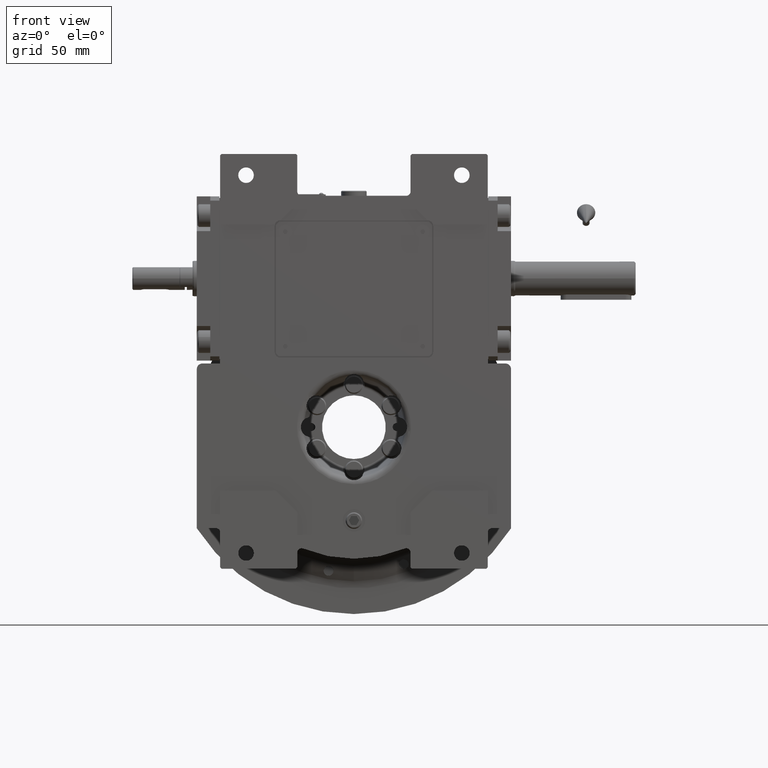
[diagram: clean part render]
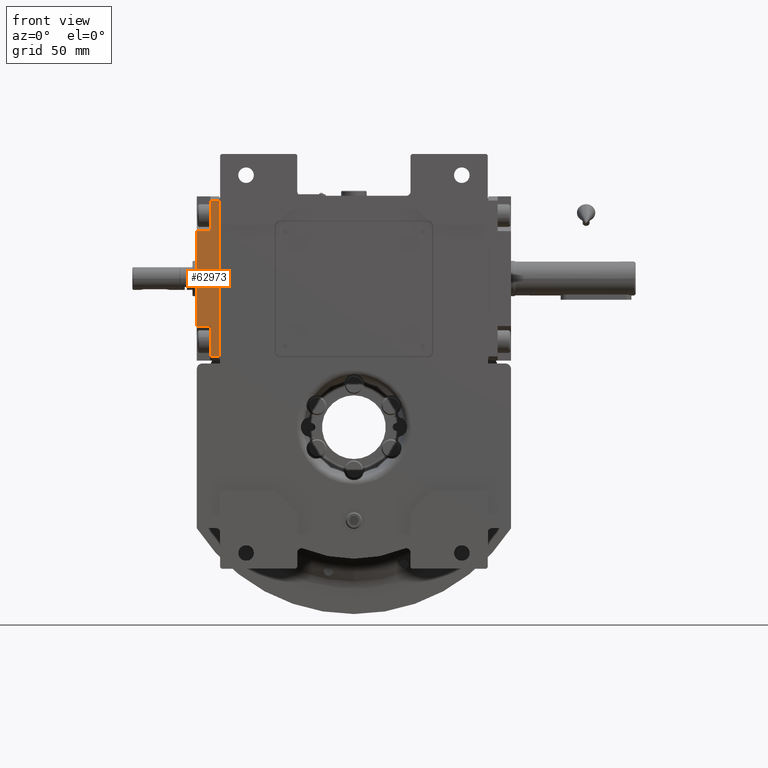
[diagram: same view with one face highlighted and labeled with its STEP entity id]
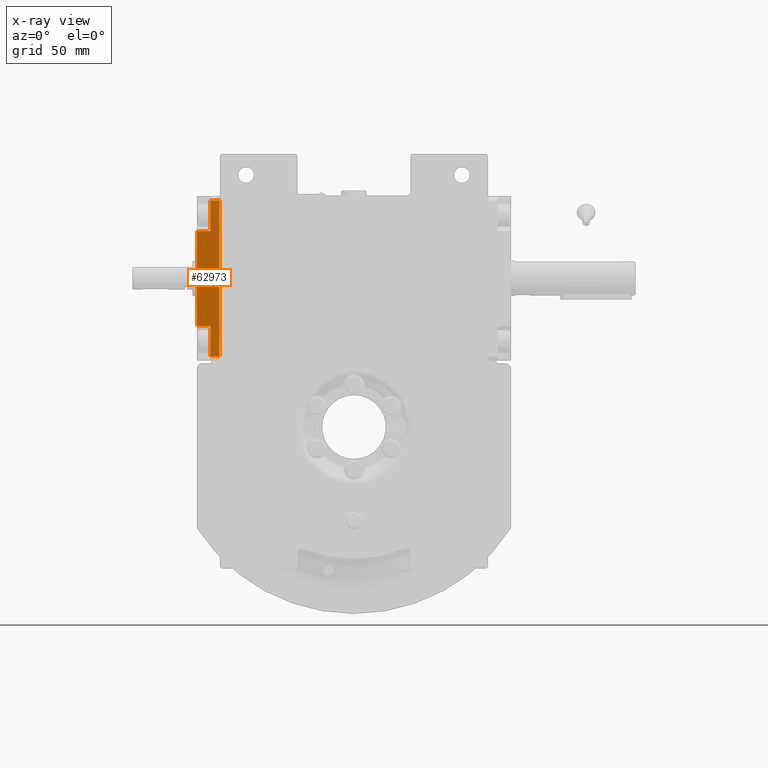
[diagram: x-ray of the same camera — body ghosted, the highlighted face saturated]
A machine part, front view. The second image highlights one B-rep face of the part: STEP entity #62973.
The next image is the same camera in x-ray: the body ghosted, the highlighted face saturated — about 0% of this face is hidden behind the body in this view.
In plain terms, the highlighted planar face has unit normal (0, -1, -0).
Its self-contained STEP definition (entity closure, byte-faithful):
#955 = LINE ( 'NONE', #11441, #61238 ) ;
#1204 = EDGE_CURVE ( 'NONE', #57229, #41560, #1568, .T. ) ;
#1380 = ORIENTED_EDGE ( 'NONE', *, *, #3777, .F. ) ;
#1568 = LINE ( 'NONE', #33686, #37749 ) ;
#3311 = DIRECTION ( 'NONE',  ( -1.919172807174472722E-28, -1.000000000000000000, -7.549516567451075519E-15 ) ) ;
#3777 = EDGE_CURVE ( 'NONE', #52362, #37644, #65413, .T. ) ;
#5114 = EDGE_CURVE ( 'NONE', #65087, #41560, #40994, .T. ) ;
#8869 = CARTESIAN_POINT ( 'NONE',  ( -53.49999999999837286, -6.499999999999992006, 33.49999999999717204 ) ) ;
#9010 = EDGE_CURVE ( 'NONE', #68118, #39548, #49257, .T. ) ;
#11441 = CARTESIAN_POINT ( 'NONE',  ( -53.50000000000330402, -6.499999999999992006, -55.00000000000370903 ) ) ;
#14350 = EDGE_CURVE ( 'NONE', #52362, #64337, #61353, .T. ) ;
#14483 = VECTOR ( 'NONE', #49365, 1000.000000000000000 ) ;
#16024 = VECTOR ( 'NONE', #3311, 1000.000000000000000 ) ;
#17050 = ORIENTED_EDGE ( 'NONE', *, *, #1204, .T. ) ;
#17276 = CARTESIAN_POINT ( 'NONE',  ( -53.50000000000215294, -15.99999999999998579, -33.50000000000375167 ) ) ;
#17468 = CARTESIAN_POINT ( 'NONE',  ( -53.49999999999722178, -6.499999999999062084, 54.99999999999695888 ) ) ;
#18385 = ORIENTED_EDGE ( 'NONE', *, *, #9010, .T. ) ;
#18449 = LINE ( 'NONE', #39753, #64567 ) ;
#18647 = CARTESIAN_POINT ( 'NONE',  ( -53.50000000000330402, -6.499999999999992006, -55.00000000000370903 ) ) ;
#18809 = ORIENTED_EDGE ( 'NONE', *, *, #14350, .T. ) ;
#21576 = VECTOR ( 'NONE', #22174, 1000.000000000000000 ) ;
#22174 = DIRECTION ( 'NONE',  ( 1.919172807174472722E-28, 1.000000000000000000, 7.549516567451075519E-15 ) ) ;
#23831 = EDGE_LOOP ( 'NONE', ( #62535, #18385, #31700, #1380, #18809, #47884, #17050, #58744 ) ) ;
#24884 = CARTESIAN_POINT ( 'NONE',  ( -53.50000000000356692, 0.000000000000000000, -58.00000000000374456 ) ) ;
#24927 = CARTESIAN_POINT ( 'NONE',  ( -53.49999999999722178, 9.436895709313830594E-13, 54.99999999999669598 ) ) ;
#25480 = CARTESIAN_POINT ( 'NONE',  ( -53.50000000000215294, -6.499999999999062084, -33.50000000000375167 ) ) ;
#30616 = CARTESIAN_POINT ( 'NONE',  ( -53.50000000000215294, -15.99999999999998579, -33.50000000000375167 ) ) ;
#31700 = ORIENTED_EDGE ( 'NONE', *, *, #44846, .T. ) ;
#32369 = DIRECTION ( 'NONE',  ( 5.662137425588298356E-14, 7.549516567451077097E-15, 1.000000000000000000 ) ) ;
#33686 = CARTESIAN_POINT ( 'NONE',  ( -53.49999999999837286, -6.499999999999992006, 33.49999999999717204 ) ) ;
#35225 = VECTOR ( 'NONE', #41460, 1000.000000000000000 ) ;
#37085 = DIRECTION ( 'NONE',  ( -1.000000000000000000, 6.630081955653464396E-28, 5.662137425588298356E-14 ) ) ;
#37644 = VERTEX_POINT ( 'NONE', #25480 ) ;
#37749 = VECTOR ( 'NONE', #50438, 1000.000000000000000 ) ;
#38403 = FACE_OUTER_BOUND ( 'NONE', #23831, .T. ) ;
#39548 = VERTEX_POINT ( 'NONE', #18647 ) ;
#39753 = CARTESIAN_POINT ( 'NONE',  ( -53.50000000000330402, 0.000000000000000000, -55.00000000000373745 ) ) ;
#40994 = LINE ( 'NONE', #24927, #16024 ) ;
#41460 = DIRECTION ( 'NONE',  ( 5.662137425588298356E-14, 7.549516567451077097E-15, 1.000000000000000000 ) ) ;
#41560 = VERTEX_POINT ( 'NONE', #17468 ) ;
#44001 = DIRECTION ( 'NONE',  ( -1.919172807174472722E-28, -1.000000000000000000, -7.549516567451075519E-15 ) ) ;
#44481 = CARTESIAN_POINT ( 'NONE',  ( -53.49999999999837286, -15.99999999999997335, 33.49999999999675282 ) ) ;
#44608 = EDGE_CURVE ( 'NONE', #68118, #65087, #18449, .T. ) ;
#44846 = EDGE_CURVE ( 'NONE', #39548, #37644, #955, .T. ) ;
#47884 = ORIENTED_EDGE ( 'NONE', *, *, #64024, .T. ) ;
#49257 = LINE ( 'NONE', #59707, #60206 ) ;
#49365 = DIRECTION ( 'NONE',  ( 1.919172807174472722E-28, 1.000000000000000000, 7.549516567451075519E-15 ) ) ;
#50438 = DIRECTION ( 'NONE',  ( 5.662137425588298356E-14, 7.549516567451077097E-15, 1.000000000000000000 ) ) ;
#52186 = CARTESIAN_POINT ( 'NONE',  ( -53.50000000000215294, -15.99999999999998579, -33.50000000000375167 ) ) ;
#52362 = VERTEX_POINT ( 'NONE', #52186 ) ;
#52635 = CARTESIAN_POINT ( 'NONE',  ( -53.49999999999722178, 9.436895709313830594E-13, 54.99999999999669598 ) ) ;
#54470 = AXIS2_PLACEMENT_3D ( 'NONE', #24884, #37085, #56987 ) ;
#56987 = DIRECTION ( 'NONE',  ( 5.662137425588298356E-14, 7.549516567451077097E-15, 1.000000000000000000 ) ) ;
#57229 = VERTEX_POINT ( 'NONE', #8869 ) ;
#57318 = PLANE ( 'NONE',  #54470 ) ;
#58744 = ORIENTED_EDGE ( 'NONE', *, *, #5114, .F. ) ;
#59707 = CARTESIAN_POINT ( 'NONE',  ( -53.50000000000330402, 0.000000000000000000, -55.00000000000373745 ) ) ;
#60206 = VECTOR ( 'NONE', #44001, 1000.000000000000000 ) ;
#61014 = DIRECTION ( 'NONE',  ( 5.662137425588298356E-14, 7.549516567451077097E-15, 1.000000000000000000 ) ) ;
#61238 = VECTOR ( 'NONE', #32369, 1000.000000000000000 ) ;
#61353 = LINE ( 'NONE', #30616, #35225 ) ;
#62535 = ORIENTED_EDGE ( 'NONE', *, *, #44608, .F. ) ;
#62908 = CARTESIAN_POINT ( 'NONE',  ( -53.49999999999837286, -15.99999999999997335, 33.49999999999675282 ) ) ;
#62973 = ADVANCED_FACE ( 'NONE', ( #38403 ), #57318, .T. ) ;
#64024 = EDGE_CURVE ( 'NONE', #64337, #57229, #65046, .T. ) ;
#64337 = VERTEX_POINT ( 'NONE', #62908 ) ;
#64567 = VECTOR ( 'NONE', #61014, 1000.000000000000000 ) ;
#65046 = LINE ( 'NONE', #44481, #14483 ) ;
#65087 = VERTEX_POINT ( 'NONE', #52635 ) ;
#65413 = LINE ( 'NONE', #17276, #21576 ) ;
#68088 = CARTESIAN_POINT ( 'NONE',  ( -53.50000000000330402, 0.000000000000000000, -55.00000000000373745 ) ) ;
#68118 = VERTEX_POINT ( 'NONE', #68088 ) ;